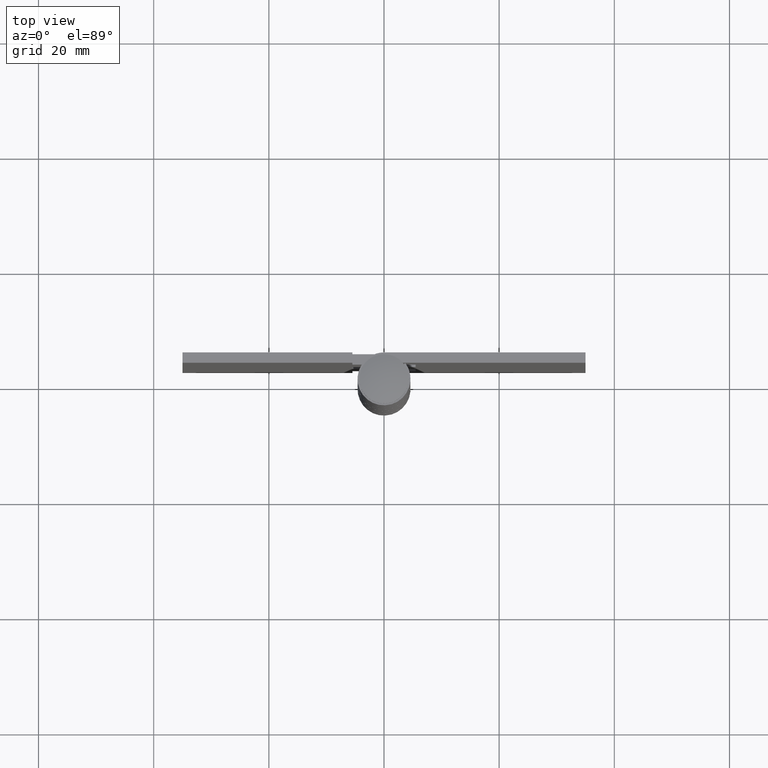
[diagram: clean part render]
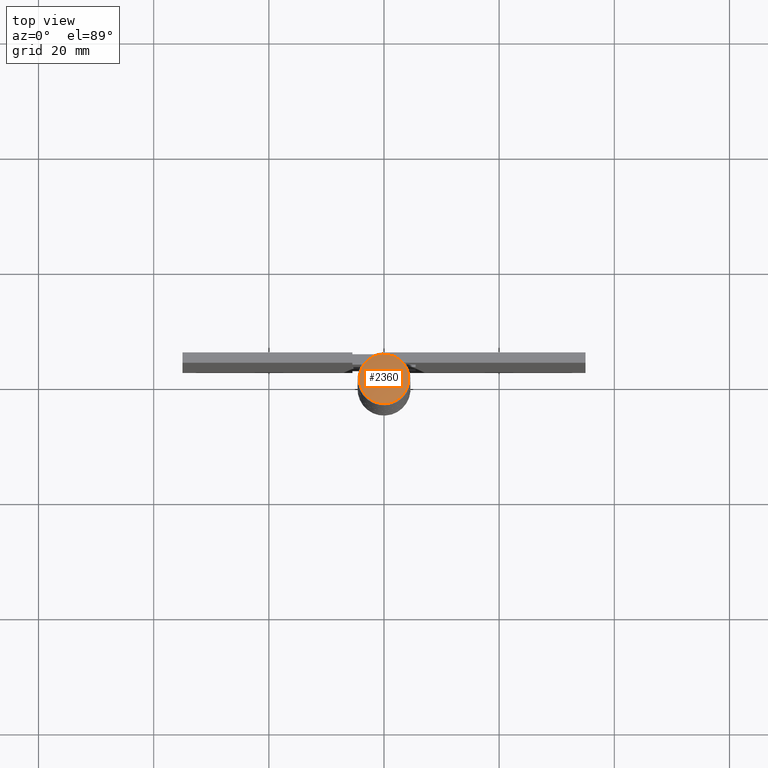
[diagram: same view with one face highlighted and labeled with its STEP entity id]
A machine part, top view. The second image highlights one B-rep face of the part: STEP entity #2360.
In plain terms, the highlighted face is a freeform B-spline surface patch.
Its self-contained STEP definition (entity closure, byte-faithful):
#2270=CARTESIAN_POINT('',(-4.408488603766962,-4.408390035805404,101.544749697052990));
#2271=CARTESIAN_POINT('',(-2.339609161949688,-4.679113702780952,102.603153014343860));
#2272=CARTESIAN_POINT('',(2.339609072875563,-4.679113702780952,102.603153014347440));
#2273=CARTESIAN_POINT('',(4.408488455347105,-4.408390055227587,101.544749772991420));
#2274=CARTESIAN_POINT('',(-4.679205474303354,-2.339550426735331,102.603102779528850));
#2275=CARTESIAN_POINT('',(-2.492680323081777,-2.492624590053421,103.799999999911190));
#2276=CARTESIAN_POINT('',(2.492680228177831,-2.492624590053421,103.799999999915000));
#2277=CARTESIAN_POINT('',(4.679205318033335,-2.339550437675724,102.603102865079750));
#2278=CARTESIAN_POINT('',(-4.679205474303354,2.339550515812347,102.603102779529050));
#2279=CARTESIAN_POINT('',(-2.492680323081777,2.492624684958616,103.799999999911290));
#2280=CARTESIAN_POINT('',(2.492680228177831,2.492624684958617,103.799999999915100));
#2281=CARTESIAN_POINT('',(4.679205318033335,2.339550526752742,102.603102865079850));
#2282=CARTESIAN_POINT('',(-4.408488584344773,4.408390184230926,101.544749621123150));
#2283=CARTESIAN_POINT('',(-2.339609151009234,4.679113859055451,102.603152928801790));
#2284=CARTESIAN_POINT('',(2.339609061935109,4.679113859055452,102.603152928805460));
#2285=CARTESIAN_POINT('',(4.408488435924920,4.408390203653115,101.544749697061630));
#2293=(BOUNDED_SURFACE()B_SPLINE_SURFACE(2,2,((#2270,#2274,#2278,#2282),(#2271,#2275,#2279,#2283),(#2272,#2276,#2280,#2284),(#2273,#2277,#2281,#2285)),.UNSPECIFIED.,.F.,.F.,.U.)B_SPLINE_SURFACE_WITH_KNOTS((3,1,3),(3,1,3),(0.0,4.827437276859766,9.654874369920965),(0.0,4.827329341758196,9.654658867314957),.UNSPECIFIED.)GEOMETRIC_REPRESENTATION_ITEM()RATIONAL_B_SPLINE_SURFACE(((1.130854833536931,1.065428879655173,1.065428879655173,1.130854838519064),(1.065425953881758,1.0,1.0,1.065425958863891),(1.065425953881758,1.0,1.0,1.065425958863891),(1.130854828554688,1.065428874672929,1.065428874672929,1.130854833536820)))REPRESENTATION_ITEM('')SURFACE());
#2294=CARTESIAN_POINT('',(0.262508720216245,-4.291979633197801,102.800000000000000));
#2295=VERTEX_POINT('',#2294);
#2296=CARTESIAN_POINT('',(-4.299999999997025,0.0,102.800000000000000));
#2297=VERTEX_POINT('',#2296);
#2298=CARTESIAN_POINT('',(0.262508720216245,-4.291979633197816,102.800000000000050));
#2299=CARTESIAN_POINT('',(0.131376882292416,-4.299999999997026,102.800000000000010));
#2300=CARTESIAN_POINT('',(0.0,-4.299999999997025,102.800000000000000));
#2301=CARTESIAN_POINT('',(-4.299999999997025,-4.299999999997025,102.799999999999980));
#2302=CARTESIAN_POINT('',(-4.299999999997025,0.0,102.800000000000000));
#2310=(BOUNDED_CURVE()B_SPLINE_CURVE(2,(#2298,#2299,#2300,#2301,#2302),.UNSPECIFIED.,.F.,.U.)B_SPLINE_CURVE_WITH_KNOTS((3,2,3),(0.739332962233263,0.750000000000000,1.0),.UNSPECIFIED.)CURVE()GEOMETRIC_REPRESENTATION_ITEM()RATIONAL_B_SPLINE_CURVE((0.976072041654544,0.987502787893183,1.0,0.707106781186547,1.0))REPRESENTATION_ITEM(''));
#2311=EDGE_CURVE('',#2295,#2297,#2310,.T.);
#2312=ORIENTED_EDGE('',*,*,#2311,.F.);
#2313=CARTESIAN_POINT('',(4.299999999997025,0.0,102.800000000000000));
#2314=VERTEX_POINT('',#2313);
#2315=CARTESIAN_POINT('',(4.299999999997025,0.0,102.800000000000000));
#2316=CARTESIAN_POINT('',(4.299999999997026,-4.045036087487225,102.800000000000000));
#2317=CARTESIAN_POINT('',(0.262508720216245,-4.291979633197816,102.800000000000050));
#2325=(BOUNDED_CURVE()B_SPLINE_CURVE(2,(#2315,#2316,#2317),.UNSPECIFIED.,.F.,.U.)B_SPLINE_CURVE_WITH_KNOTS((3,3),(0.500000000000000,0.739332962233263),.UNSPECIFIED.)CURVE()GEOMETRIC_REPRESENTATION_ITEM()RATIONAL_B_SPLINE_CURVE((1.0,0.719603993293365,0.976072041654544))REPRESENTATION_ITEM(''));
#2326=EDGE_CURVE('',#2314,#2295,#2325,.T.);
#2327=ORIENTED_EDGE('',*,*,#2326,.F.);
#2328=CARTESIAN_POINT('',(-0.262508720216245,4.291979633197801,102.800000000000000));
#2329=VERTEX_POINT('',#2328);
#2330=CARTESIAN_POINT('',(-0.262508720216246,4.291979633197815,102.800000000000070));
#2331=CARTESIAN_POINT('',(-0.131376882292416,4.299999999997025,102.800000000000010));
#2332=CARTESIAN_POINT('',(0.0,4.299999999997025,102.800000000000000));
#2333=CARTESIAN_POINT('',(4.299999999997025,4.299999999997025,102.799999999999980));
#2334=CARTESIAN_POINT('',(4.299999999997025,0.0,102.800000000000000));
#2342=(BOUNDED_CURVE()B_SPLINE_CURVE(2,(#2330,#2331,#2332,#2333,#2334),.UNSPECIFIED.,.F.,.U.)B_SPLINE_CURVE_WITH_KNOTS((3,2,3),(0.239332962233263,0.250000000000000,0.500000000000000),.UNSPECIFIED.)CURVE()GEOMETRIC_REPRESENTATION_ITEM()RATIONAL_B_SPLINE_CURVE((0.976072041654544,0.987502787893183,1.0,0.707106781186547,1.0))REPRESENTATION_ITEM(''));
#2343=EDGE_CURVE('',#2329,#2314,#2342,.T.);
#2344=ORIENTED_EDGE('',*,*,#2343,.F.);
#2345=CARTESIAN_POINT('',(-4.299999999997025,0.0,102.800000000000000));
#2346=CARTESIAN_POINT('',(-4.299999999997025,4.045036087487224,102.799999999999980));
#2347=CARTESIAN_POINT('',(-0.262508720216246,4.291979633197815,102.800000000000070));
#2355=(BOUNDED_CURVE()B_SPLINE_CURVE(2,(#2345,#2346,#2347),.UNSPECIFIED.,.F.,.U.)B_SPLINE_CURVE_WITH_KNOTS((3,3),(0.0,0.239332962233263),.UNSPECIFIED.)CURVE()GEOMETRIC_REPRESENTATION_ITEM()RATIONAL_B_SPLINE_CURVE((1.0,0.719603993293365,0.976072041654544))REPRESENTATION_ITEM(''));
#2356=EDGE_CURVE('',#2297,#2329,#2355,.T.);
#2357=ORIENTED_EDGE('',*,*,#2356,.F.);
#2358=EDGE_LOOP('',(#2312,#2327,#2344,#2357));
#2359=FACE_OUTER_BOUND('',#2358,.T.);
#2360=ADVANCED_FACE('',(#2359),#2293,.T.);